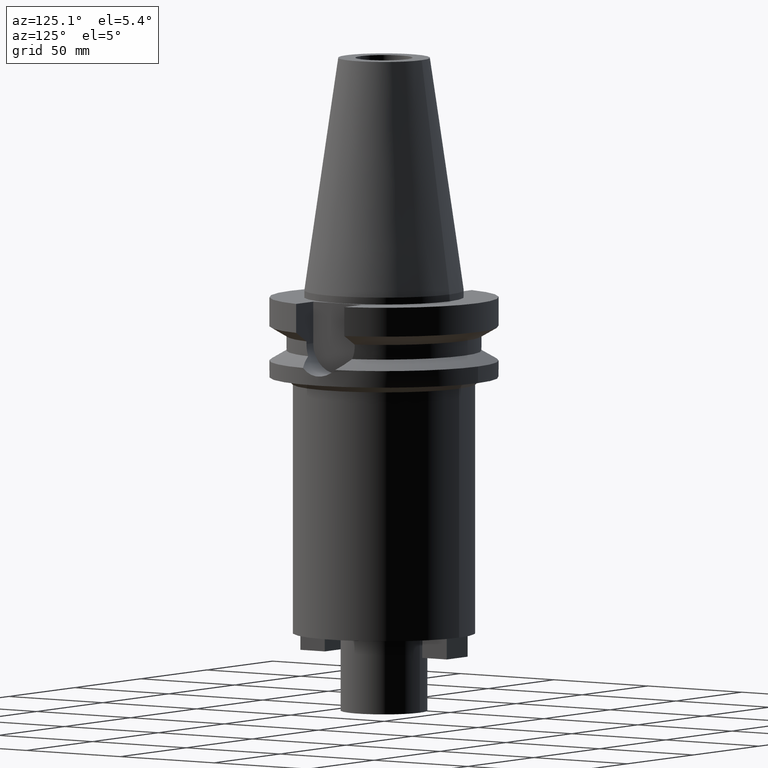
[diagram: clean part render]
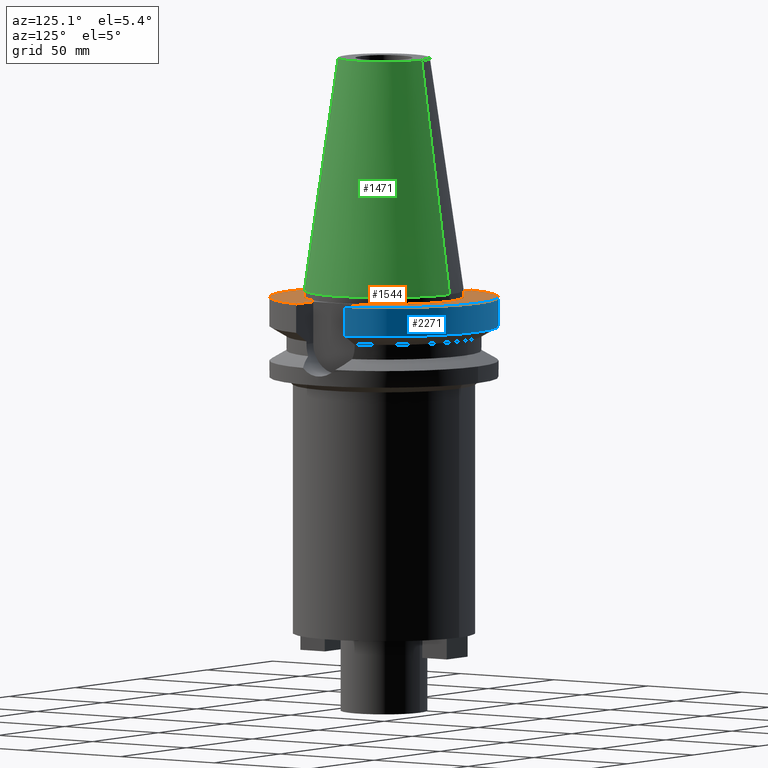
[diagram: same view with three faces highlighted in distinct colors, each labeled with its STEP entity id]
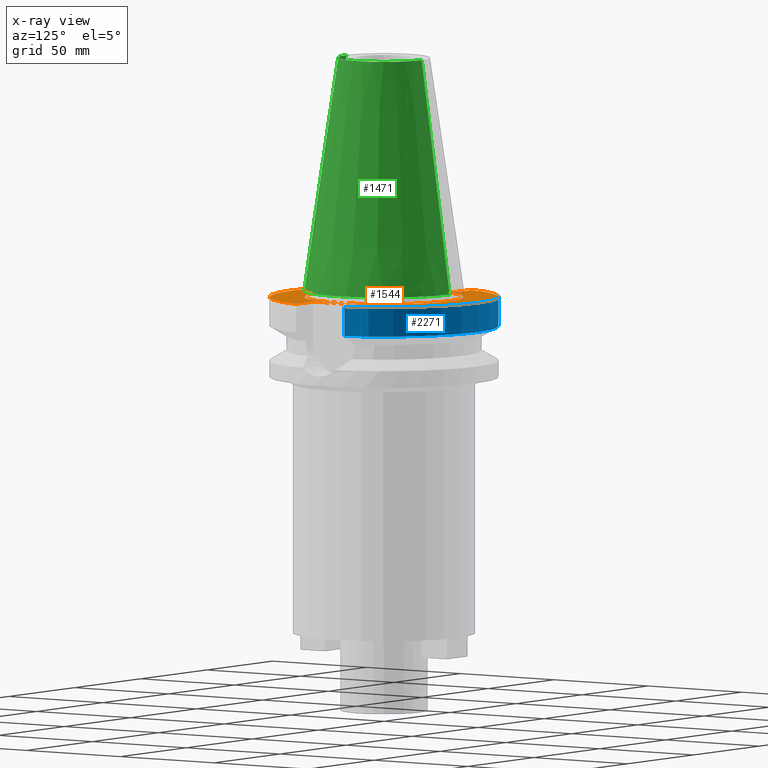
[diagram: x-ray of the same camera — body ghosted, the three highlighted faces saturated]
A machine part, auxiliary view with three faces highlighted in distinct colors.
The next image is the same camera in x-ray (body ghosted, the three faces saturated) — at least one of them is partly hidden behind the body in this view.
Their STEP definitions:

[orange] entity #1544 — the highlighted planar face has unit normal (0, 0, -1).
#170=DIRECTION('',(0.E0,1.E0,0.E0));
#171=VECTOR('',#170,2.57E1);
#172=CARTESIAN_POINT('',(-3.54E1,-1.285E1,-3.E0));
#173=LINE('',#172,#171);
#177=DIRECTION('',(-1.E0,0.E0,0.E0));
#178=VECTOR('',#177,1.292057015392E1);
#179=CARTESIAN_POINT('',(-3.54E1,1.285E1,-3.E0));
#180=LINE('',#179,#178);
#184=CARTESIAN_POINT('',(0.E0,2.646339268278E-14,-3.E0));
#185=DIRECTION('',(0.E0,0.E0,-1.E0));
#186=DIRECTION('',(-9.664114030784E-1,2.57E-1,0.E0));
#187=AXIS2_PLACEMENT_3D('',#184,#185,#186);
#192=CARTESIAN_POINT('',(0.E0,2.646339268278E-14,-3.E0));
#193=DIRECTION('',(0.E0,0.E0,-1.E0));
#194=DIRECTION('',(0.E0,1.E0,0.E0));
#195=AXIS2_PLACEMENT_3D('',#192,#193,#194);
#200=DIRECTION('',(0.E0,-1.E0,0.E0));
#201=VECTOR('',#200,2.57E1);
#202=CARTESIAN_POINT('',(3.54E1,1.285E1,-3.E0));
#203=LINE('',#202,#201);
#207=DIRECTION('',(1.E0,0.E0,0.E0));
#208=VECTOR('',#207,1.292057015392E1);
#209=CARTESIAN_POINT('',(3.54E1,-1.285E1,-3.E0));
#210=LINE('',#209,#208);
#214=CARTESIAN_POINT('',(0.E0,2.646339268278E-14,-3.E0));
#215=DIRECTION('',(0.E0,0.E0,-1.E0));
#216=DIRECTION('',(9.664114030784E-1,-2.57E-1,0.E0));
#217=AXIS2_PLACEMENT_3D('',#214,#215,#216);
#222=CARTESIAN_POINT('',(0.E0,2.646339268278E-14,-3.E0));
#223=DIRECTION('',(0.E0,0.E0,-1.E0));
#224=DIRECTION('',(0.E0,-1.E0,0.E0));
#225=AXIS2_PLACEMENT_3D('',#222,#223,#224);
#230=CARTESIAN_POINT('',(0.E0,2.646339268278E-14,-3.E0));
#231=DIRECTION('',(0.E0,0.E0,1.E0));
#232=DIRECTION('',(0.E0,1.E0,0.E0));
#233=AXIS2_PLACEMENT_3D('',#230,#231,#232);
#238=CARTESIAN_POINT('',(0.E0,2.646339268278E-14,-3.E0));
#239=DIRECTION('',(0.E0,0.E0,1.E0));
#240=DIRECTION('',(0.E0,-1.E0,0.E0));
#241=AXIS2_PLACEMENT_3D('',#238,#239,#240);
#276=DIRECTION('',(-1.E0,0.E0,0.E0));
#277=VECTOR('',#276,1.292057015392E1);
#278=CARTESIAN_POINT('',(-3.54E1,-1.285E1,-3.E0));
#279=LINE('',#278,#277);
#1009=DIRECTION('',(1.E0,0.E0,0.E0));
#1010=VECTOR('',#1009,1.292057015392E1);
#1011=CARTESIAN_POINT('',(3.54E1,1.285E1,-3.E0));
#1012=LINE('',#1011,#1010);
#1192=CARTESIAN_POINT('',(0.E0,3.4925E1,-3.E0));
#1193=VERTEX_POINT('',#1192);
#1194=CARTESIAN_POINT('',(0.E0,-3.4925E1,-3.E0));
#1195=VERTEX_POINT('',#1194);
#1196=CARTESIAN_POINT('',(-3.54E1,-1.285E1,-3.E0));
#1197=CARTESIAN_POINT('',(-3.54E1,1.285E1,-3.E0));
#1198=VERTEX_POINT('',#1196);
#1199=VERTEX_POINT('',#1197);
#1200=CARTESIAN_POINT('',(-4.832057015392E1,1.285E1,-3.E0));
#1201=VERTEX_POINT('',#1200);
#1202=CARTESIAN_POINT('',(-1.065814103640E-14,5.E1,-3.E0));
#1203=CARTESIAN_POINT('',(4.832057015392E1,1.285E1,-3.E0));
#1204=VERTEX_POINT('',#1202);
#1205=VERTEX_POINT('',#1203);
#1206=CARTESIAN_POINT('',(3.54E1,1.285E1,-3.E0));
#1207=VERTEX_POINT('',#1206);
#1208=CARTESIAN_POINT('',(3.54E1,-1.285E1,-3.E0));
#1209=VERTEX_POINT('',#1208);
#1210=CARTESIAN_POINT('',(4.832057015392E1,-1.285E1,-3.E0));
#1211=VERTEX_POINT('',#1210);
#1212=CARTESIAN_POINT('',(1.065814103640E-14,-5.E1,-3.E0));
#1213=CARTESIAN_POINT('',(-4.832057015392E1,-1.285E1,-3.E0));
#1214=VERTEX_POINT('',#1212);
#1215=VERTEX_POINT('',#1213);
#1513=CARTESIAN_POINT('',(0.E0,1.187907395173E-14,-3.E0));
#1514=DIRECTION('',(0.E0,0.E0,-1.E0));
#1515=DIRECTION('',(0.E0,-1.E0,0.E0));
#1516=AXIS2_PLACEMENT_3D('',#1513,#1514,#1515);
#1517=PLANE('',#1516);
#1519=ORIENTED_EDGE('',*,*,#1518,.T.);
#1521=ORIENTED_EDGE('',*,*,#1520,.T.);
#1523=ORIENTED_EDGE('',*,*,#1522,.T.);
#1525=ORIENTED_EDGE('',*,*,#1524,.T.);
#1527=ORIENTED_EDGE('',*,*,#1526,.F.);
#1529=ORIENTED_EDGE('',*,*,#1528,.T.);
#1531=ORIENTED_EDGE('',*,*,#1530,.T.);
#1533=ORIENTED_EDGE('',*,*,#1532,.T.);
#1535=ORIENTED_EDGE('',*,*,#1534,.T.);
#1537=ORIENTED_EDGE('',*,*,#1536,.F.);
#1538=EDGE_LOOP('',(#1519,#1521,#1523,#1525,#1527,#1529,#1531,#1533,#1535,
#1537));
#1539=FACE_OUTER_BOUND('',#1538,.F.);
#1540=ORIENTED_EDGE('',*,*,#1495,.T.);
#1541=ORIENTED_EDGE('',*,*,#1506,.T.);
#1542=EDGE_LOOP('',(#1540,#1541));
#1543=FACE_BOUND('',#1542,.F.);
#188=CIRCLE('',#187,5.E1);
#196=CIRCLE('',#195,5.E1);
#218=CIRCLE('',#217,5.E1);
#226=CIRCLE('',#225,5.E1);
#234=CIRCLE('',#233,3.4925E1);
#242=CIRCLE('',#241,3.4925E1);
#1495=EDGE_CURVE('',#1193,#1195,#234,.T.);
#1506=EDGE_CURVE('',#1195,#1193,#242,.T.);
#1518=EDGE_CURVE('',#1198,#1199,#173,.T.);
#1520=EDGE_CURVE('',#1199,#1201,#180,.T.);
#1522=EDGE_CURVE('',#1201,#1204,#188,.T.);
#1524=EDGE_CURVE('',#1204,#1205,#196,.T.);
#1526=EDGE_CURVE('',#1207,#1205,#1012,.T.);
#1528=EDGE_CURVE('',#1207,#1209,#203,.T.);
#1530=EDGE_CURVE('',#1209,#1211,#210,.T.);
#1532=EDGE_CURVE('',#1211,#1214,#218,.T.);
#1534=EDGE_CURVE('',#1214,#1215,#226,.T.);
#1536=EDGE_CURVE('',#1198,#1215,#279,.T.);
#1544=ADVANCED_FACE('',(#1539,#1543),#1517,.F.);

[blue] entity #2271 — the highlighted cylindrical surface (partial cylindrical patch) has radius 50 mm, axis along (0, 0, -1).
#184=CARTESIAN_POINT('',(0.E0,2.646339268278E-14,-3.E0));
#185=DIRECTION('',(0.E0,0.E0,-1.E0));
#186=DIRECTION('',(-9.664114030784E-1,2.57E-1,0.E0));
#187=AXIS2_PLACEMENT_3D('',#184,#185,#186);
#192=CARTESIAN_POINT('',(0.E0,2.646339268278E-14,-3.E0));
#193=DIRECTION('',(0.E0,0.E0,-1.E0));
#194=DIRECTION('',(0.E0,1.E0,0.E0));
#195=AXIS2_PLACEMENT_3D('',#192,#193,#194);
#1016=CARTESIAN_POINT('',(4.832056912815E1,1.285000385726E1,-1.566265768273E1));
#1112=DIRECTION('',(8.103406434829E-8,3.047167049312E-7,-1.E0));
#1113=VECTOR('',#1112,1.266265767139E1);
#1114=CARTESIAN_POINT('',(-4.832057015392E1,1.285E1,-3.E0));
#1115=LINE('',#1114,#1113);
#1119=DIRECTION('',(8.100749521827E-8,-3.046167948963E-7,1.E0));
#1120=VECTOR('',#1119,1.266265768273E1);
#1121=CARTESIAN_POINT('',(4.832056912815E1,1.285000385726E1,-1.566265768273E1));
#1122=LINE('',#1121,#1120);
#1131=CARTESIAN_POINT('',(-4.832056912781E1,1.285000385852E1,
-1.566265767139E1));
#1152=CARTESIAN_POINT('',(0.E0,1.006319759054E-14,-1.566269223573E1));
#1153=DIRECTION('',(0.E0,0.E0,1.E0));
#1154=DIRECTION('',(9.664114030784E-1,2.57E-1,0.E0));
#1155=AXIS2_PLACEMENT_3D('',#1152,#1153,#1154);
#1160=CARTESIAN_POINT('',(0.E0,1.006319759054E-14,-1.566269223573E1));
#1161=DIRECTION('',(0.E0,0.E0,1.E0));
#1162=DIRECTION('',(0.E0,1.E0,0.E0));
#1163=AXIS2_PLACEMENT_3D('',#1160,#1161,#1162);
#1200=CARTESIAN_POINT('',(-4.832057015392E1,1.285E1,-3.E0));
#1201=VERTEX_POINT('',#1200);
#1202=CARTESIAN_POINT('',(-1.065814103640E-14,5.E1,-3.E0));
#1203=CARTESIAN_POINT('',(4.832057015392E1,1.285E1,-3.E0));
#1204=VERTEX_POINT('',#1202);
#1205=VERTEX_POINT('',#1203);
#1353=VERTEX_POINT('',#1131);
#1354=VERTEX_POINT('',#1016);
#1355=CARTESIAN_POINT('',(0.E0,5.E1,-1.566269223573E1));
#1356=VERTEX_POINT('',#1355);
#2255=CARTESIAN_POINT('',(0.E0,2.646339268278E-14,1.1609E2));
#2256=DIRECTION('',(0.E0,0.E0,-1.E0));
#2257=DIRECTION('',(0.E0,-1.E0,0.E0));
#2258=AXIS2_PLACEMENT_3D('',#2255,#2256,#2257);
#2259=CYLINDRICAL_SURFACE('',#2258,5.E1);
#2261=ORIENTED_EDGE('',*,*,#2260,.T.);
#2263=ORIENTED_EDGE('',*,*,#2262,.F.);
#2265=ORIENTED_EDGE('',*,*,#2264,.F.);
#2266=ORIENTED_EDGE('',*,*,#2188,.T.);
#2267=ORIENTED_EDGE('',*,*,#1524,.F.);
#2268=ORIENTED_EDGE('',*,*,#1522,.F.);
#2269=EDGE_LOOP('',(#2261,#2263,#2265,#2266,#2267,#2268));
#2270=FACE_OUTER_BOUND('',#2269,.F.);
#188=CIRCLE('',#187,5.E1);
#196=CIRCLE('',#195,5.E1);
#1156=CIRCLE('',#1155,5.E1);
#1164=CIRCLE('',#1163,5.E1);
#1522=EDGE_CURVE('',#1201,#1204,#188,.T.);
#1524=EDGE_CURVE('',#1204,#1205,#196,.T.);
#2188=EDGE_CURVE('',#1354,#1205,#1122,.T.);
#2260=EDGE_CURVE('',#1201,#1353,#1115,.T.);
#2262=EDGE_CURVE('',#1356,#1353,#1164,.T.);
#2264=EDGE_CURVE('',#1354,#1356,#1156,.T.);
#2271=ADVANCED_FACE('',(#2270),#2259,.T.);

[green] entity #1471 — the highlighted conical surface has half-angle 8.297 deg.
#94=CARTESIAN_POINT('',(0.E0,1.847992019913E-14,1.018E2));
#95=DIRECTION('',(0.E0,0.E0,-1.E0));
#96=DIRECTION('',(0.E0,1.E0,0.E0));
#97=AXIS2_PLACEMENT_3D('',#94,#95,#96);
#126=DIRECTION('',(0.E0,1.443043893539E-1,-9.895333461856E-1));
#127=VECTOR('',#126,1.028767755957E2);
#128=CARTESIAN_POINT('',(0.E0,2.007942971896E1,1.018E2));
#129=LINE('',#128,#127);
#133=CARTESIAN_POINT('',(0.E0,1.847992019913E-14,3.979039320257E-13));
#134=DIRECTION('',(0.E0,0.E0,-1.E0));
#135=DIRECTION('',(0.E0,1.E0,0.E0));
#136=AXIS2_PLACEMENT_3D('',#133,#134,#135);
#141=DIRECTION('',(0.E0,-1.443043893539E-1,-9.895333461856E-1));
#142=VECTOR('',#141,1.028767755957E2);
#143=CARTESIAN_POINT('',(0.E0,-2.007942971896E1,1.018E2));
#144=LINE('',#143,#142);
#1184=CARTESIAN_POINT('',(0.E0,2.007942971896E1,1.018E2));
#1185=CARTESIAN_POINT('',(0.E0,-2.007942971896E1,1.018E2));
#1186=VERTEX_POINT('',#1184);
#1187=VERTEX_POINT('',#1185);
#1188=CARTESIAN_POINT('',(0.E0,3.4925E1,4.689582056017E-13));
#1189=VERTEX_POINT('',#1188);
#1190=CARTESIAN_POINT('',(0.E0,-3.4925E1,3.979039320257E-13));
#1191=VERTEX_POINT('',#1190);
#1457=CARTESIAN_POINT('',(0.E0,1.847992019913E-14,5.09E1));
#1458=DIRECTION('',(0.E0,0.E0,-1.E0));
#1459=DIRECTION('',(0.E0,-1.E0,0.E0));
#1460=AXIS2_PLACEMENT_3D('',#1457,#1458,#1459);
#1461=CONICAL_SURFACE('',#1460,2.750221485948E1,8.297E0);
#1463=ORIENTED_EDGE('',*,*,#1462,.T.);
#1465=ORIENTED_EDGE('',*,*,#1464,.T.);
#1467=ORIENTED_EDGE('',*,*,#1466,.F.);
#1468=ORIENTED_EDGE('',*,*,#1446,.F.);
#1469=EDGE_LOOP('',(#1463,#1465,#1467,#1468));
#1470=FACE_OUTER_BOUND('',#1469,.F.);
#98=CIRCLE('',#97,2.007942971896E1);
#137=CIRCLE('',#136,3.4925E1);
#1446=EDGE_CURVE('',#1186,#1187,#98,.T.);
#1462=EDGE_CURVE('',#1186,#1189,#129,.T.);
#1464=EDGE_CURVE('',#1189,#1191,#137,.T.);
#1466=EDGE_CURVE('',#1187,#1191,#144,.T.);
#1471=ADVANCED_FACE('',(#1470),#1461,.T.);